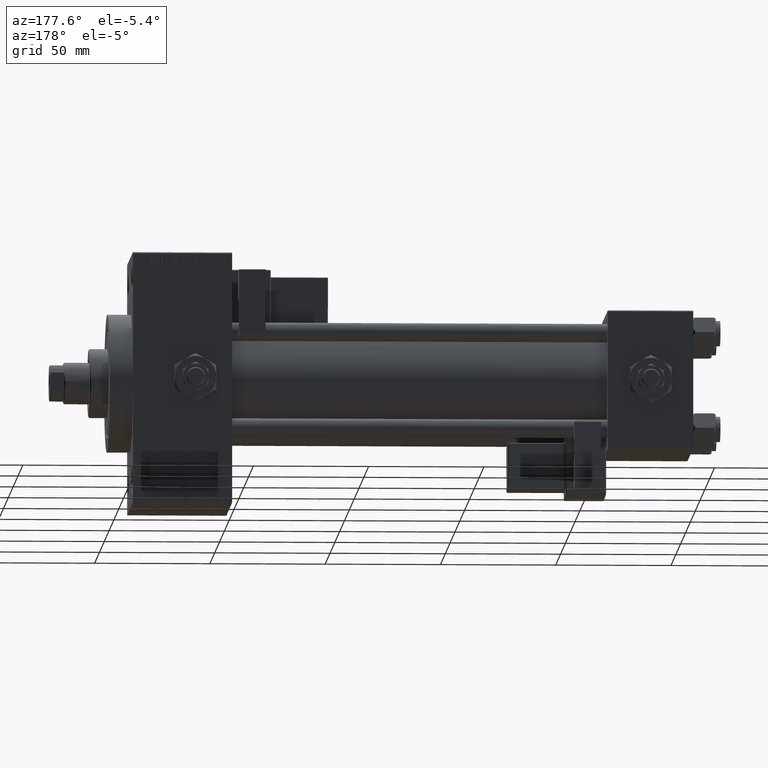
[diagram: clean part render]
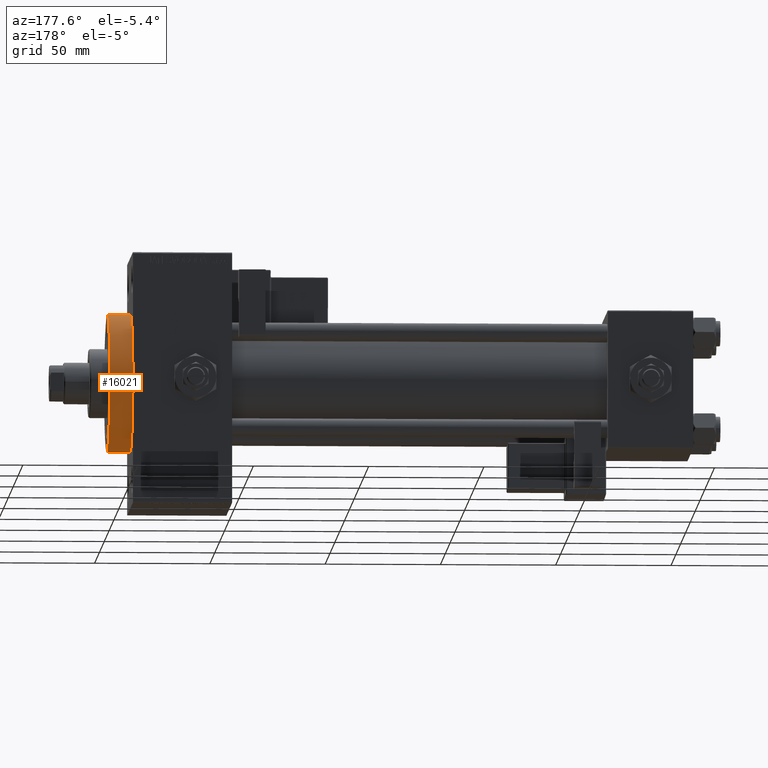
[diagram: same view with one face highlighted and labeled with its STEP entity id]
A machine part, auxiliary view. The second image highlights one B-rep face of the part: STEP entity #16021.
In plain terms, the highlighted cylindrical surface (partial cylindrical patch) has radius 30 mm, axis along (-1, -0, -0).
Its self-contained STEP definition (entity closure, byte-faithful):
#819 = CIRCLE ( 'NONE', #24184, 30.00000000000000000 ) ;
#2070 = CARTESIAN_POINT ( 'NONE',  ( 243.0000000000000000, 3.673940397442059178E-15, -30.00000000000000000 ) ) ;
#3148 = EDGE_CURVE ( 'NONE', #45557, #12740, #10385, .T. ) ;
#4743 = ORIENTED_EDGE ( 'NONE', *, *, #8832, .T. ) ;
#6750 = DIRECTION ( 'NONE',  ( -1.000000000000000000, -0.000000000000000000, -0.000000000000000000 ) ) ;
#7254 = DIRECTION ( 'NONE',  ( 0.000000000000000000, 0.000000000000000000, -1.000000000000000000 ) ) ;
#7671 = AXIS2_PLACEMENT_3D ( 'NONE', #38646, #6750, #26116 ) ;
#8037 = CARTESIAN_POINT ( 'NONE',  ( 243.0000000000000000, 0.000000000000000000, 0.000000000000000000 ) ) ;
#8832 = EDGE_CURVE ( 'NONE', #12740, #22813, #819, .T. ) ;
#9720 = CARTESIAN_POINT ( 'NONE',  ( 243.0000000000000000, 30.00000000000000000, 0.000000000000000000 ) ) ;
#10385 = LINE ( 'NONE', #14557, #46503 ) ;
#10546 = CARTESIAN_POINT ( 'NONE',  ( 253.0000000000000000, 0.000000000000000000, 30.00000000000000000 ) ) ;
#12740 = VERTEX_POINT ( 'NONE', #2070 ) ;
#12921 = AXIS2_PLACEMENT_3D ( 'NONE', #16356, #13201, #40157 ) ;
#13201 = DIRECTION ( 'NONE',  ( 1.000000000000000000, 0.000000000000000000, 0.000000000000000000 ) ) ;
#14408 = DIRECTION ( 'NONE',  ( 1.000000000000000000, 0.000000000000000000, 0.000000000000000000 ) ) ;
#14557 = CARTESIAN_POINT ( 'NONE',  ( 253.0000000000000000, 3.673940397442059178E-15, -30.00000000000000000 ) ) ;
#14596 = EDGE_LOOP ( 'NONE', ( #22467, #18348, #4743, #38142, #35661 ) ) ;
#16021 = ADVANCED_FACE ( 'NONE', ( #42049 ), #34468, .T. ) ;
#16147 = AXIS2_PLACEMENT_3D ( 'NONE', #26197, #14408, #30371 ) ;
#16356 = CARTESIAN_POINT ( 'NONE',  ( 243.0000000000000000, 0.000000000000000000, 0.000000000000000000 ) ) ;
#18348 = ORIENTED_EDGE ( 'NONE', *, *, #3148, .T. ) ;
#18909 = LINE ( 'NONE', #23364, #36867 ) ;
#22467 = ORIENTED_EDGE ( 'NONE', *, *, #49352, .F. ) ;
#22813 = VERTEX_POINT ( 'NONE', #9720 ) ;
#22831 = CIRCLE ( 'NONE', #16147, 30.00000000000000000 ) ;
#23364 = CARTESIAN_POINT ( 'NONE',  ( 253.0000000000000000, 0.000000000000000000, 30.00000000000000000 ) ) ;
#24184 = AXIS2_PLACEMENT_3D ( 'NONE', #8037, #39410, #7254 ) ;
#26116 = DIRECTION ( 'NONE',  ( 0.000000000000000000, 0.000000000000000000, 1.000000000000000000 ) ) ;
#26197 = CARTESIAN_POINT ( 'NONE',  ( 253.0000000000000000, 0.000000000000000000, 0.000000000000000000 ) ) ;
#30371 = DIRECTION ( 'NONE',  ( 0.000000000000000000, 0.000000000000000000, -1.000000000000000000 ) ) ;
#31876 = VERTEX_POINT ( 'NONE', #43594 ) ;
#34468 = CYLINDRICAL_SURFACE ( 'NONE', #7671, 30.00000000000000000 ) ;
#34870 = DIRECTION ( 'NONE',  ( -1.000000000000000000, -0.000000000000000000, -0.000000000000000000 ) ) ;
#35661 = ORIENTED_EDGE ( 'NONE', *, *, #45995, .F. ) ;
#36867 = VECTOR ( 'NONE', #34870, 1000.000000000000000 ) ;
#38142 = ORIENTED_EDGE ( 'NONE', *, *, #50777, .T. ) ;
#38646 = CARTESIAN_POINT ( 'NONE',  ( 253.0000000000000000, 0.000000000000000000, 0.000000000000000000 ) ) ;
#39410 = DIRECTION ( 'NONE',  ( 1.000000000000000000, 0.000000000000000000, 0.000000000000000000 ) ) ;
#40157 = DIRECTION ( 'NONE',  ( 0.000000000000000000, 0.000000000000000000, -1.000000000000000000 ) ) ;
#42049 = FACE_OUTER_BOUND ( 'NONE', #14596, .T. ) ;
#42257 = CARTESIAN_POINT ( 'NONE',  ( 253.0000000000000000, 3.673940397442059178E-15, -30.00000000000000000 ) ) ;
#42539 = DIRECTION ( 'NONE',  ( -1.000000000000000000, -0.000000000000000000, -0.000000000000000000 ) ) ;
#43594 = CARTESIAN_POINT ( 'NONE',  ( 243.0000000000000000, 0.000000000000000000, 30.00000000000000000 ) ) ;
#45557 = VERTEX_POINT ( 'NONE', #42257 ) ;
#45995 = EDGE_CURVE ( 'NONE', #48922, #31876, #18909, .T. ) ;
#46503 = VECTOR ( 'NONE', #42539, 1000.000000000000000 ) ;
#48922 = VERTEX_POINT ( 'NONE', #10546 ) ;
#49352 = EDGE_CURVE ( 'NONE', #45557, #48922, #22831, .T. ) ;
#50777 = EDGE_CURVE ( 'NONE', #22813, #31876, #51351, .T. ) ;
#51351 = CIRCLE ( 'NONE', #12921, 30.00000000000000000 ) ;